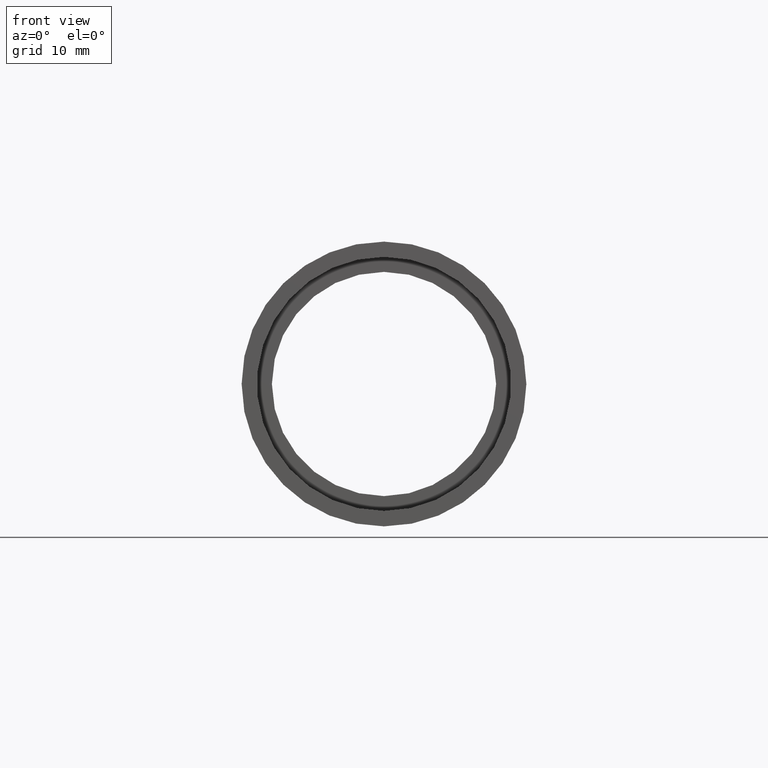
[diagram: clean part render]
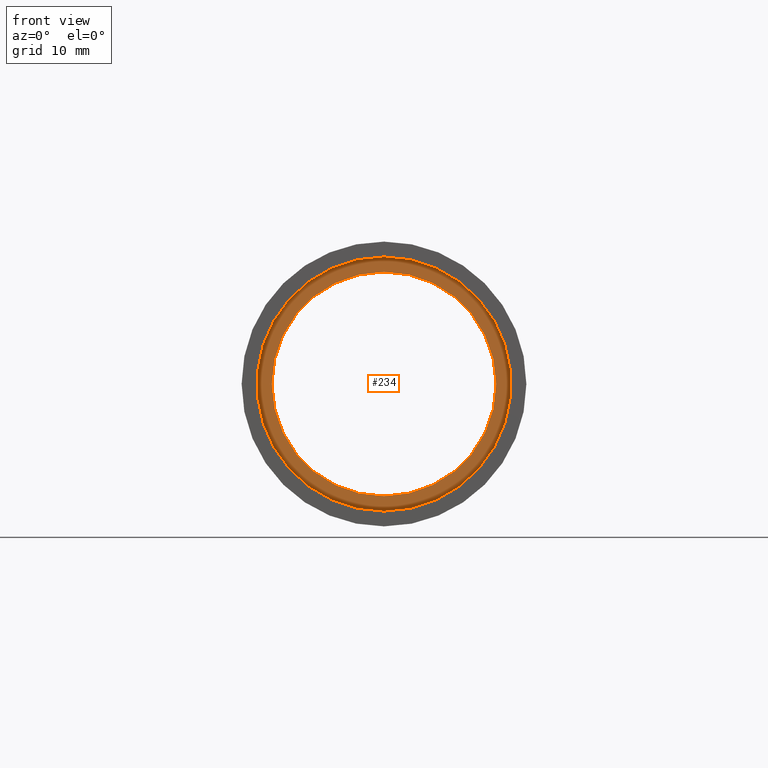
[diagram: same view with one face highlighted and labeled with its STEP entity id]
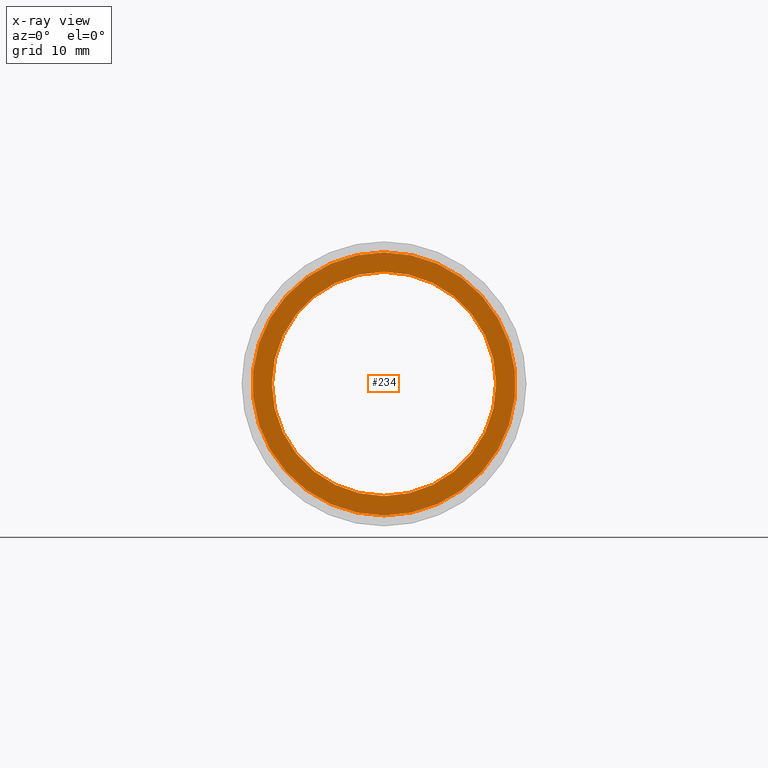
[diagram: x-ray of the same camera — body ghosted, the highlighted face saturated]
A machine part, front view. The second image highlights one B-rep face of the part: STEP entity #234.
The next image is the same camera in x-ray: the body ghosted, the highlighted face saturated — about 0% of this face is hidden behind the body in this view.
In plain terms, the highlighted planar face has unit normal (-0, 1, 0).
Its self-contained STEP definition (entity closure, byte-faithful):
#26 = CARTESIAN_POINT ( 'NONE',  ( 1.836970198721032000E-015, 5.499999999999976900, -15.00000000000001800 ) ) ;
#49 = EDGE_CURVE ( 'NONE', #416, #95, #524, .T. ) ;
#51 = CARTESIAN_POINT ( 'NONE',  ( 0.0000000000000000000, 5.499999999999976900, 0.0000000000000000000 ) ) ;
#58 = CARTESIAN_POINT ( 'NONE',  ( 0.0000000000000000000, 5.499999999999976900, 15.00000000000001800 ) ) ;
#77 = AXIS2_PLACEMENT_3D ( 'NONE', #227, #457, #222 ) ;
#84 = EDGE_LOOP ( 'NONE', ( #176, #492 ) ) ;
#95 = VERTEX_POINT ( 'NONE', #58 ) ;
#102 = DIRECTION ( 'NONE',  ( -0.0000000000000000000, 1.000000000000000000, 0.0000000000000000000 ) ) ;
#119 = CIRCLE ( 'NONE', #351, 17.60000000000002300 ) ;
#141 = DIRECTION ( 'NONE',  ( 0.0000000000000000000, 0.0000000000000000000, 1.000000000000000000 ) ) ;
#149 = DIRECTION ( 'NONE',  ( -0.0000000000000000000, 1.000000000000000000, -0.0000000000000000000 ) ) ;
#157 = DIRECTION ( 'NONE',  ( -0.0000000000000000000, 1.000000000000000000, -0.0000000000000000000 ) ) ;
#175 = EDGE_LOOP ( 'NONE', ( #229, #201 ) ) ;
#176 = ORIENTED_EDGE ( 'NONE', *, *, #320, .F. ) ;
#201 = ORIENTED_EDGE ( 'NONE', *, *, #49, .T. ) ;
#222 = DIRECTION ( 'NONE',  ( 0.0000000000000000000, 0.0000000000000000000, 1.000000000000000000 ) ) ;
#227 = CARTESIAN_POINT ( 'NONE',  ( 0.0000000000000000000, 5.499999999999976900, 0.0000000000000000000 ) ) ;
#229 = ORIENTED_EDGE ( 'NONE', *, *, #503, .T. ) ;
#230 = AXIS2_PLACEMENT_3D ( 'NONE', #583, #157, #346 ) ;
#234 = ADVANCED_FACE ( 'NONE', ( #532, #386 ), #389, .F. ) ;
#252 = DIRECTION ( 'NONE',  ( -0.0000000000000000000, 1.000000000000000000, -0.0000000000000000000 ) ) ;
#281 = VERTEX_POINT ( 'NONE', #491 ) ;
#303 = CIRCLE ( 'NONE', #230, 17.60000000000002300 ) ;
#320 = EDGE_CURVE ( 'NONE', #281, #598, #119, .T. ) ;
#346 = DIRECTION ( 'NONE',  ( 0.0000000000000000000, 0.0000000000000000000, 1.000000000000000000 ) ) ;
#348 = DIRECTION ( 'NONE',  ( 0.0000000000000000000, 0.0000000000000000000, 1.000000000000000000 ) ) ;
#351 = AXIS2_PLACEMENT_3D ( 'NONE', #400, #252, #348 ) ;
#372 = CARTESIAN_POINT ( 'NONE',  ( 2.155378366499344400E-015, 5.499999999999976900, -17.60000000000002300 ) ) ;
#373 = CIRCLE ( 'NONE', #77, 15.00000000000001800 ) ;
#375 = AXIS2_PLACEMENT_3D ( 'NONE', #51, #149, #141 ) ;
#386 = FACE_BOUND ( 'NONE', #175, .T. ) ;
#389 = PLANE ( 'NONE',  #390 ) ;
#390 = AXIS2_PLACEMENT_3D ( 'NONE', #483, #102, #434 ) ;
#400 = CARTESIAN_POINT ( 'NONE',  ( 0.0000000000000000000, 5.499999999999976900, 0.0000000000000000000 ) ) ;
#416 = VERTEX_POINT ( 'NONE', #26 ) ;
#434 = DIRECTION ( 'NONE',  ( 0.0000000000000000000, 0.0000000000000000000, 1.000000000000000000 ) ) ;
#457 = DIRECTION ( 'NONE',  ( -0.0000000000000000000, 1.000000000000000000, -0.0000000000000000000 ) ) ;
#483 = CARTESIAN_POINT ( 'NONE',  ( 15.00000000000001800, 5.499999999999984000, 0.0000000000000000000 ) ) ;
#491 = CARTESIAN_POINT ( 'NONE',  ( 0.0000000000000000000, 5.499999999999976900, 17.60000000000002300 ) ) ;
#492 = ORIENTED_EDGE ( 'NONE', *, *, #599, .F. ) ;
#503 = EDGE_CURVE ( 'NONE', #95, #416, #373, .T. ) ;
#524 = CIRCLE ( 'NONE', #375, 15.00000000000001800 ) ;
#532 = FACE_OUTER_BOUND ( 'NONE', #84, .T. ) ;
#583 = CARTESIAN_POINT ( 'NONE',  ( 0.0000000000000000000, 5.499999999999976900, 0.0000000000000000000 ) ) ;
#598 = VERTEX_POINT ( 'NONE', #372 ) ;
#599 = EDGE_CURVE ( 'NONE', #598, #281, #303, .T. ) ;